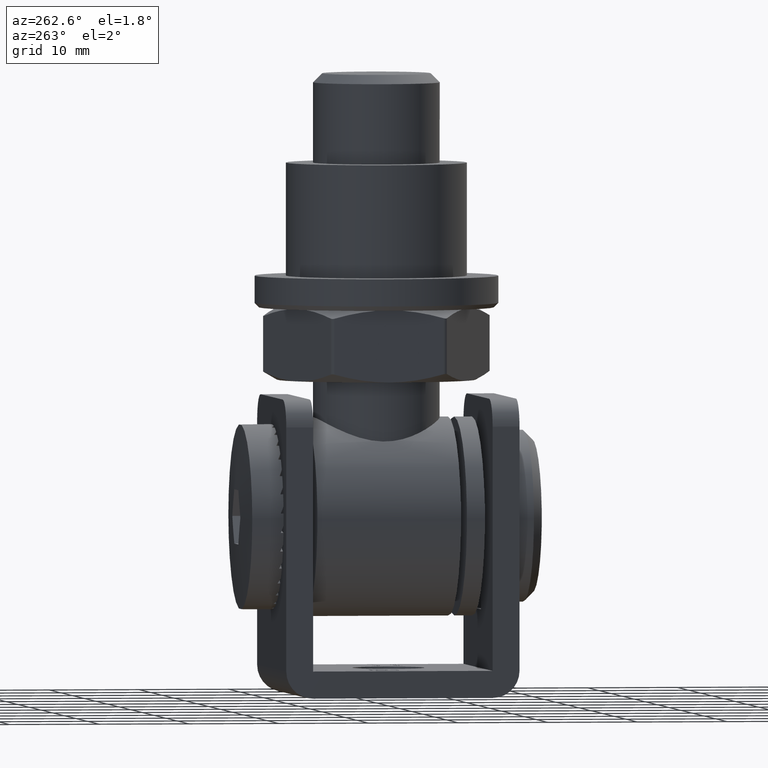
[diagram: clean part render]
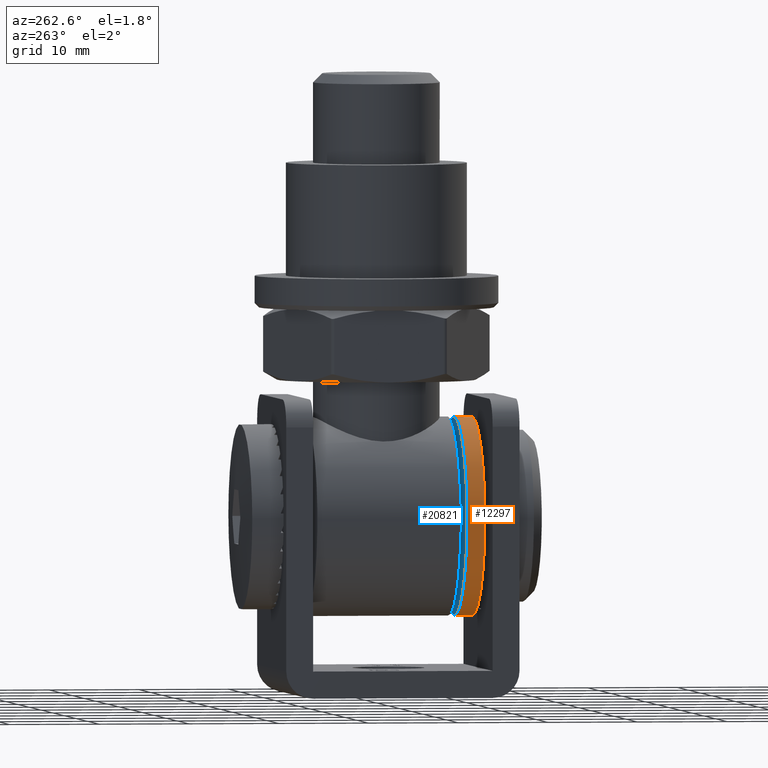
[diagram: same view with the hole feature highlighted: cylindrical wall and planar end face, labeled with their STEP entity ids]
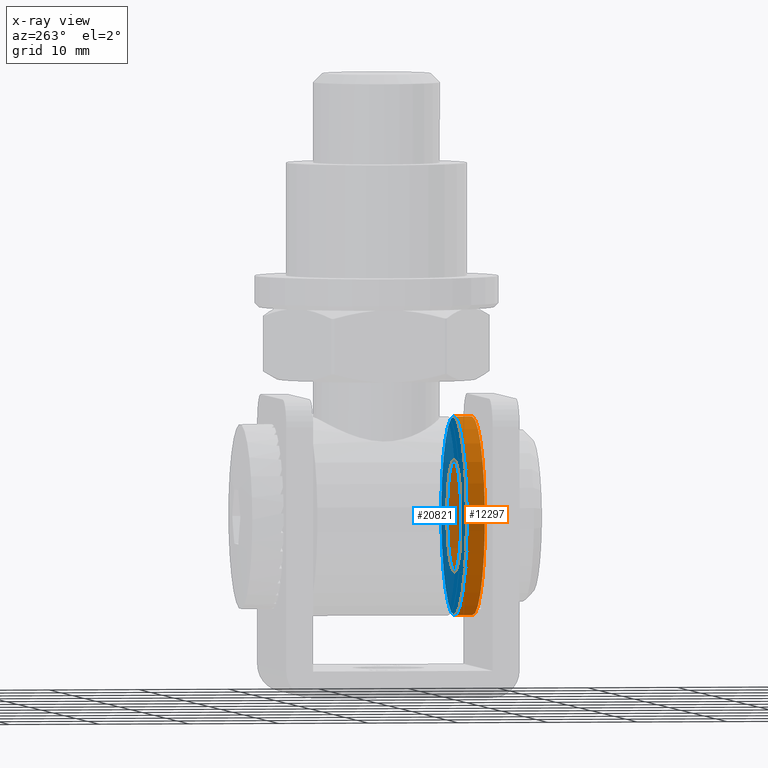
[diagram: x-ray of the same camera — body ghosted, the hole faces saturated]
A machine part, auxiliary view. The highlighted faces form one hole feature of diameter 22 mm: the cylindrical wall (entity #12297, orange) and its adjacent planar end face (entity #20821, blue) — they share a circular edge in the B-rep.
The next image is the same camera in x-ray (body ghosted, the hole faces saturated) — the bore reads through the body.
Wall:
#336 = FACE_OUTER_BOUND ( 'NONE', #9007, .T. ) ;
#1846 = DIRECTION ( 'NONE',  ( 0.000000000000000000, 1.000000000000000000, 0.000000000000000000 ) ) ;
#1980 = VERTEX_POINT ( 'NONE', #10203 ) ;
#3407 = DIRECTION ( 'NONE',  ( 0.000000000000000000, 0.000000000000000000, -1.000000000000000000 ) ) ;
#3496 = CARTESIAN_POINT ( 'NONE',  ( 0.000000000000000000, 1.000000000000000888, 0.000000000000000000 ) ) ;
#3530 = VERTEX_POINT ( 'NONE', #19990 ) ;
#7836 = ORIENTED_EDGE ( 'NONE', *, *, #11537, .T. ) ;
#7858 = AXIS2_PLACEMENT_3D ( 'NONE', #10343, #12008, #15080 ) ;
#8047 = ORIENTED_EDGE ( 'NONE', *, *, #18924, .F. ) ;
#9007 = EDGE_LOOP ( 'NONE', ( #7836 ) ) ;
#9709 = CIRCLE ( 'NONE', #7858, 11.00000000000000000 ) ;
#10203 = CARTESIAN_POINT ( 'NONE',  ( 0.000000000000000000, -1.000000000000000888, 11.00000000000000000 ) ) ;
#10343 = CARTESIAN_POINT ( 'NONE',  ( 0.000000000000000000, -1.000000000000000888, 0.000000000000000000 ) ) ;
#11537 = EDGE_CURVE ( 'NONE', #1980, #1980, #9709, .T. ) ;
#12008 = DIRECTION ( 'NONE',  ( 0.000000000000000000, 1.000000000000000000, 0.000000000000000000 ) ) ;
#12297 = ADVANCED_FACE ( 'NONE', ( #19766, #336 ), #15951, .T. ) ;
#12737 = EDGE_LOOP ( 'NONE', ( #8047 ) ) ;
#13267 = DIRECTION ( 'NONE',  ( 0.000000000000000000, 0.000000000000000000, 1.000000000000000000 ) ) ;
#13329 = DIRECTION ( 'NONE',  ( -0.000000000000000000, -1.000000000000000000, -0.000000000000000000 ) ) ;
#13468 = CIRCLE ( 'NONE', #13967, 11.00000000000000000 ) ;
#13967 = AXIS2_PLACEMENT_3D ( 'NONE', #3496, #1846, #13267 ) ;
#14831 = CARTESIAN_POINT ( 'NONE',  ( 0.000000000000000000, 1.000000000000000888, 0.000000000000000000 ) ) ;
#15080 = DIRECTION ( 'NONE',  ( 0.000000000000000000, 0.000000000000000000, 1.000000000000000000 ) ) ;
#15951 = CYLINDRICAL_SURFACE ( 'NONE', #20889, 11.00000000000000000 ) ;
#18924 = EDGE_CURVE ( 'NONE', #3530, #3530, #13468, .T. ) ;
#19766 = FACE_OUTER_BOUND ( 'NONE', #12737, .T. ) ;
#19990 = CARTESIAN_POINT ( 'NONE',  ( 0.000000000000000000, 1.000000000000000888, 11.00000000000000000 ) ) ;
#20889 = AXIS2_PLACEMENT_3D ( 'NONE', #14831, #13329, #3407 ) ;
End face:
#232 = FACE_BOUND ( 'NONE', #18015, .T. ) ;
#401 = CARTESIAN_POINT ( 'NONE',  ( 0.000000000000000000, 1.000000000000000888, 6.250000000000000000 ) ) ;
#1746 = FACE_OUTER_BOUND ( 'NONE', #3185, .T. ) ;
#1846 = DIRECTION ( 'NONE',  ( 0.000000000000000000, 1.000000000000000000, 0.000000000000000000 ) ) ;
#1894 = DIRECTION ( 'NONE',  ( 0.000000000000000000, 0.000000000000000000, 1.000000000000000000 ) ) ;
#3185 = EDGE_LOOP ( 'NONE', ( #9073 ) ) ;
#3232 = DIRECTION ( 'NONE',  ( 0.000000000000000000, -0.000000000000000000, 1.000000000000000000 ) ) ;
#3496 = CARTESIAN_POINT ( 'NONE',  ( 0.000000000000000000, 1.000000000000000888, 0.000000000000000000 ) ) ;
#3530 = VERTEX_POINT ( 'NONE', #19990 ) ;
#4087 = CIRCLE ( 'NONE', #4901, 6.250000000000000000 ) ;
#4901 = AXIS2_PLACEMENT_3D ( 'NONE', #16456, #18330, #1894 ) ;
#6342 = AXIS2_PLACEMENT_3D ( 'NONE', #19634, #14577, #3232 ) ;
#7488 = EDGE_CURVE ( 'NONE', #18620, #18620, #4087, .T. ) ;
#8059 = PLANE ( 'NONE',  #6342 ) ;
#9073 = ORIENTED_EDGE ( 'NONE', *, *, #18924, .T. ) ;
#11396 = ORIENTED_EDGE ( 'NONE', *, *, #7488, .F. ) ;
#13267 = DIRECTION ( 'NONE',  ( 0.000000000000000000, 0.000000000000000000, 1.000000000000000000 ) ) ;
#13468 = CIRCLE ( 'NONE', #13967, 11.00000000000000000 ) ;
#13967 = AXIS2_PLACEMENT_3D ( 'NONE', #3496, #1846, #13267 ) ;
#14577 = DIRECTION ( 'NONE',  ( 0.000000000000000000, 1.000000000000000000, 0.000000000000000000 ) ) ;
#16456 = CARTESIAN_POINT ( 'NONE',  ( 0.000000000000000000, 1.000000000000000888, 0.000000000000000000 ) ) ;
#18015 = EDGE_LOOP ( 'NONE', ( #11396 ) ) ;
#18330 = DIRECTION ( 'NONE',  ( 0.000000000000000000, 1.000000000000000000, 0.000000000000000000 ) ) ;
#18620 = VERTEX_POINT ( 'NONE', #401 ) ;
#18924 = EDGE_CURVE ( 'NONE', #3530, #3530, #13468, .T. ) ;
#19634 = CARTESIAN_POINT ( 'NONE',  ( 0.000000000000000000, 1.000000000000000888, 0.000000000000000000 ) ) ;
#19990 = CARTESIAN_POINT ( 'NONE',  ( 0.000000000000000000, 1.000000000000000888, 11.00000000000000000 ) ) ;
#20821 = ADVANCED_FACE ( 'NONE', ( #1746, #232 ), #8059, .T. ) ;